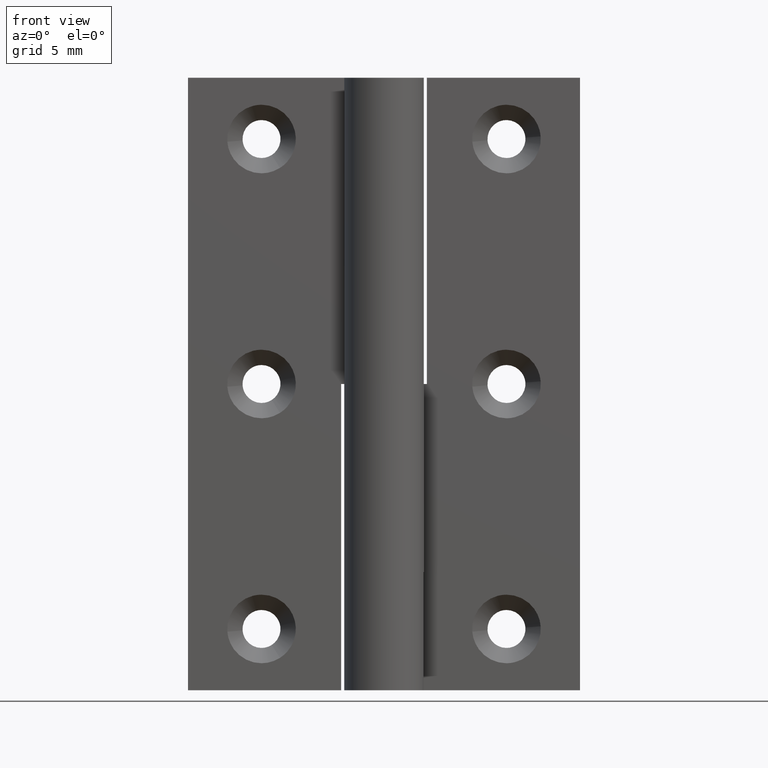
[diagram: clean part render]
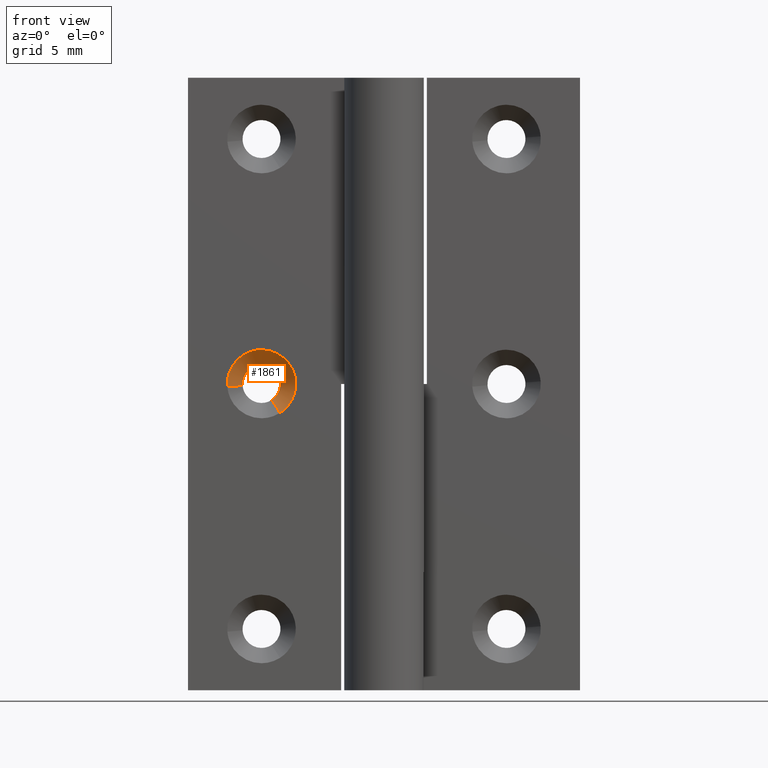
[diagram: same view with one face highlighted and labeled with its STEP entity id]
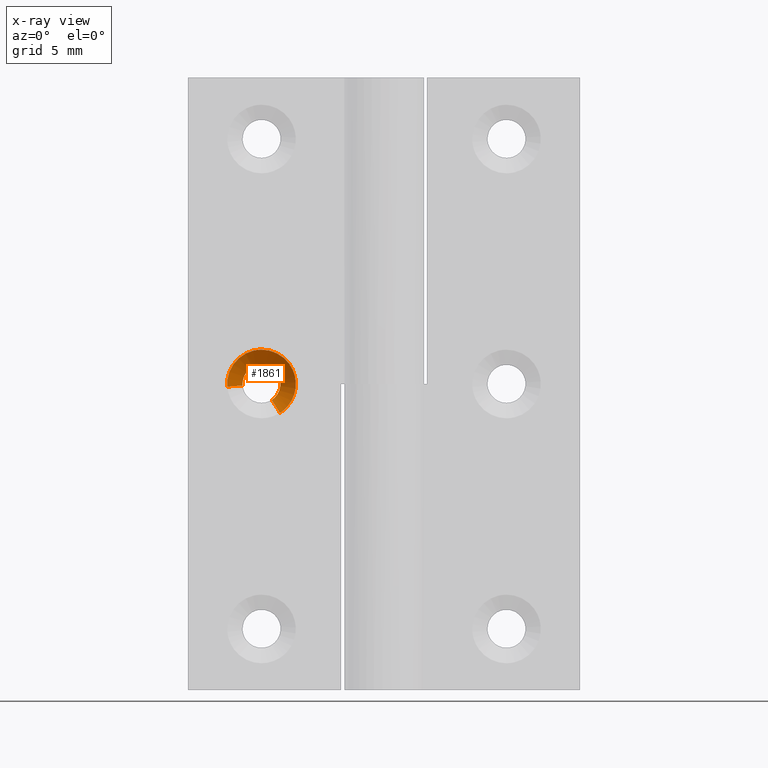
[diagram: x-ray of the same camera — body ghosted, the highlighted face saturated]
A machine part, front view. The second image highlights one B-rep face of the part: STEP entity #1861.
The next image is the same camera in x-ray: the body ghosted, the highlighted face saturated — about 0% of this face is hidden behind the body in this view.
In plain terms, the highlighted face is a freeform B-spline surface patch.
Its self-contained STEP definition (entity closure, byte-faithful):
#1725=CARTESIAN_POINT('',(-9.183139107453576,3.031250000000000,23.719632925787192));
#1726=CARTESIAN_POINT('',(-8.414386393113874,3.031250000000001,24.210089171523677));
#1727=CARTESIAN_POINT('',(-8.485931799392812,3.031250000000000,25.119159751636669));
#1728=CARTESIAN_POINT('',(-8.605091551029480,3.031250000000001,26.633227952243857));
#1729=CARTESIAN_POINT('',(-10.119159751636669,3.031250000000000,26.514068200607191));
#1730=CARTESIAN_POINT('',(-11.633227952243853,3.031250000000001,26.394908448970515));
#1731=CARTESIAN_POINT('',(-11.514068200607189,3.031250000000000,24.880840248363331));
#1732=CARTESIAN_POINT('',(-8.476789745123053,1.717968750000000,22.612484236614488));
#1733=CARTESIAN_POINT('',(-7.043287384278698,1.717968750000000,23.527043851220846));
#1734=CARTESIAN_POINT('',(-7.176698957201103,1.717968750000000,25.222198610947999));
#1735=CARTESIAN_POINT('',(-7.398897568149104,1.717968750000001,28.045499653746891));
#1736=CARTESIAN_POINT('',(-10.222198610948000,1.717968750000000,27.823301042798899));
#1737=CARTESIAN_POINT('',(-13.045499653746896,1.717968750000001,27.601102431850897));
#1738=CARTESIAN_POINT('',(-12.823301042798899,1.717968750000000,24.777801389052001));
#1746=(BOUNDED_SURFACE()B_SPLINE_SURFACE(2,1,((#1725,#1732),(#1726,#1733),(#1727,#1734),(#1728,#1735),(#1729,#1736),(#1730,#1737),(#1731,#1738)),.UNSPECIFIED.,.F.,.F.,.U.)B_SPLINE_SURFACE_WITH_KNOTS((3,2,2,3),(2,2),(0.0,3.190738847655248,7.883001858912967,12.575264870170690),(0.0,1.0),.UNSPECIFIED.)GEOMETRIC_REPRESENTATION_ITEM()RATIONAL_B_SPLINE_SURFACE(((0.872532871172386,0.872532871172386),(0.800832611206852,0.800832611206852),(1.0,1.0),(0.707106781186548,0.707106781186548),(1.0,1.0),(0.707106781186548,0.707106781186548),(1.0,1.0)))REPRESENTATION_ITEM('')SURFACE());
#1747=CARTESIAN_POINT('',(-8.460835234154370,3.0,25.182953063869839));
#1748=VERTEX_POINT('',#1747);
#1749=CARTESIAN_POINT('',(-9.166331270153041,2.999999999999661,23.693287924263188));
#1750=VERTEX_POINT('',#1749);
#1751=CARTESIAN_POINT('',(-8.460835234154370,3.0,25.182953063869842));
#1752=CARTESIAN_POINT('',(-8.450000000000001,3.000000000000000,25.091797385613933));
#1753=CARTESIAN_POINT('',(-8.450000000000001,3.0,25.0));
#1754=CARTESIAN_POINT('',(-8.450000000000001,3.000000000000000,24.150299833185166));
#1755=CARTESIAN_POINT('',(-9.166331270153041,2.999999999999661,23.693287924263188));
#1763=(BOUNDED_CURVE()B_SPLINE_CURVE(2,(#1751,#1752,#1753,#1754,#1755),.UNSPECIFIED.,.F.,.U.)B_SPLINE_CURVE_WITH_KNOTS((3,2,3),(0.229562473482294,0.250000000000000,0.407950112626363),.UNSPECIFIED.)CURVE()GEOMETRIC_REPRESENTATION_ITEM()RATIONAL_B_SPLINE_CURVE((0.956026754122519,0.976055948294576,1.0,0.814949932403669,0.863729296954190))REPRESENTATION_ITEM(''));
#1764=EDGE_CURVE('',#1748,#1750,#1763,.T.);
#1765=ORIENTED_EDGE('',*,*,#1764,.T.);
#1766=CARTESIAN_POINT('',(-8.494017778289672,1.749999999996397,22.639487863214299));
#1767=VERTEX_POINT('',#1766);
#1768=CARTESIAN_POINT('',(-9.166331270153041,2.999999999999661,23.693287924263188));
#1769=CARTESIAN_POINT('',(-8.494017778289672,1.749999999996397,22.639487863214299));
#1770=QUASI_UNIFORM_CURVE('',1,(#1768,#1769),.UNSPECIFIED.,.F.,.U.);
#1771=EDGE_CURVE('',#1750,#1767,#1770,.T.);
#1772=ORIENTED_EDGE('',*,*,#1771,.T.);
#1773=CARTESIAN_POINT('',(-10.0,1.750000000000000,27.800000000000001));
#1774=VERTEX_POINT('',#1773);
#1775=CARTESIAN_POINT('',(-10.0,1.750000000000000,27.800000000000001));
#1776=CARTESIAN_POINT('',(-7.200000000000000,1.750000000000000,27.800000000000004));
#1777=CARTESIAN_POINT('',(-7.200000000000000,1.750000000000000,25.0));
#1778=CARTESIAN_POINT('',(-7.200000000000000,1.750000000000000,23.465057763249849));
#1779=CARTESIAN_POINT('',(-8.494017778289672,1.749999999996397,22.639487863214292));
#1787=(BOUNDED_CURVE()B_SPLINE_CURVE(2,(#1775,#1776,#1777,#1778,#1779),.UNSPECIFIED.,.F.,.U.)B_SPLINE_CURVE_WITH_KNOTS((3,2,3),(0.0,0.250000000000000,0.407950112619935),.UNSPECIFIED.)CURVE()GEOMETRIC_REPRESENTATION_ITEM()RATIONAL_B_SPLINE_CURVE((1.0,0.707106781186547,1.0,0.814949932411200,0.863729296950220))REPRESENTATION_ITEM(''));
#1788=EDGE_CURVE('',#1774,#1767,#1787,.T.);
#1789=ORIENTED_EDGE('',*,*,#1788,.F.);
#1790=CARTESIAN_POINT('',(-12.791368534462871,1.749999999974804,24.780314531769420));
#1791=VERTEX_POINT('',#1790);
#1792=CARTESIAN_POINT('',(-12.791368534462872,1.749999999974804,24.780314531769417));
#1793=CARTESIAN_POINT('',(-12.800000000000004,1.750000000000000,24.889987700187003));
#1794=CARTESIAN_POINT('',(-12.800000000000001,1.750000000000000,25.0));
#1795=CARTESIAN_POINT('',(-12.800000000000001,1.750000000000000,27.800000000000004));
#1796=CARTESIAN_POINT('',(-10.0,1.750000000000000,27.800000000000001));
#1804=(BOUNDED_CURVE()B_SPLINE_CURVE(2,(#1792,#1793,#1794,#1795,#1796),.UNSPECIFIED.,.F.,.U.)B_SPLINE_CURVE_WITH_KNOTS((3,2,3),(0.736331300609352,0.750000000000000,1.0),.UNSPECIFIED.)CURVE()GEOMETRIC_REPRESENTATION_ITEM()RATIONAL_B_SPLINE_CURVE((0.969723356122950,0.983986122553918,1.0,0.707106781186547,1.0))REPRESENTATION_ITEM(''));
#1805=EDGE_CURVE('',#1791,#1774,#1804,.T.);
#1806=ORIENTED_EDGE('',*,*,#1805,.F.);
#1807=CARTESIAN_POINT('',(-11.545221867302221,2.999999999960591,24.878388401321178));
#1808=VERTEX_POINT('',#1807);
#1809=CARTESIAN_POINT('',(-11.545221867302221,2.999999999960591,24.878388401321178));
#1810=CARTESIAN_POINT('',(-12.791368534462871,1.749999999974804,24.780314531769420));
#1811=QUASI_UNIFORM_CURVE('',1,(#1809,#1810),.UNSPECIFIED.,.F.,.U.);
#1812=EDGE_CURVE('',#1808,#1791,#1811,.T.);
#1813=ORIENTED_EDGE('',*,*,#1812,.F.);
#1814=CARTESIAN_POINT('',(-11.547108937546771,3.0,24.905374763604481));
#1815=VERTEX_POINT('',#1814);
#1816=CARTESIAN_POINT('',(-11.545221867302217,2.999999999960591,24.878388401321185));
#1817=CARTESIAN_POINT('',(-11.546283155599831,2.999999999999999,24.891873348150725));
#1818=CARTESIAN_POINT('',(-11.547108937546765,3.0,24.905374763604478));
#1826=(BOUNDED_CURVE()B_SPLINE_CURVE(2,(#1816,#1817,#1818),.UNSPECIFIED.,.F.,.U.)B_SPLINE_CURVE_WITH_KNOTS((3,3),(0.736331300566744,0.739332962215982),.UNSPECIFIED.)CURVE()GEOMETRIC_REPRESENTATION_ITEM()RATIONAL_B_SPLINE_CURVE((0.969723356034031,0.972855475467485,0.976072041617508))REPRESENTATION_ITEM(''));
#1827=EDGE_CURVE('',#1808,#1815,#1826,.T.);
#1828=ORIENTED_EDGE('',*,*,#1827,.T.);
#1829=CARTESIAN_POINT('',(-10.0,3.0,26.550000000000001));
#1830=VERTEX_POINT('',#1829);
#1831=CARTESIAN_POINT('',(-11.547108937546774,3.000000000000000,24.905374763604478));
#1832=CARTESIAN_POINT('',(-11.550000000000004,2.999999999999999,24.952643216770358));
#1833=CARTESIAN_POINT('',(-11.550000000000001,3.0,25.0));
#1834=CARTESIAN_POINT('',(-11.549999999999999,3.000000000000000,26.550000000000008));
#1835=CARTESIAN_POINT('',(-10.0,3.0,26.550000000000001));
#1843=(BOUNDED_CURVE()B_SPLINE_CURVE(2,(#1831,#1832,#1833,#1834,#1835),.UNSPECIFIED.,.F.,.U.)B_SPLINE_CURVE_WITH_KNOTS((3,2,3),(0.739332962215983,0.750000000000000,1.0),.UNSPECIFIED.)CURVE()GEOMETRIC_REPRESENTATION_ITEM()RATIONAL_B_SPLINE_CURVE((0.976072041617510,0.987502787872938,1.0,0.707106781186547,1.0))REPRESENTATION_ITEM(''));
#1844=EDGE_CURVE('',#1815,#1830,#1843,.T.);
#1845=ORIENTED_EDGE('',*,*,#1844,.T.);
#1846=CARTESIAN_POINT('',(-10.0,3.0,26.550000000000001));
#1847=CARTESIAN_POINT('',(-8.623329485048956,3.000000000000000,26.549999999999994));
#1848=CARTESIAN_POINT('',(-8.460835234154370,3.000000000000000,25.182953063869835));
#1856=(BOUNDED_CURVE()B_SPLINE_CURVE(2,(#1846,#1847,#1848),.UNSPECIFIED.,.F.,.U.)B_SPLINE_CURVE_WITH_KNOTS((3,3),(0.0,0.229562473482294),.UNSPECIFIED.)CURVE()GEOMETRIC_REPRESENTATION_ITEM()RATIONAL_B_SPLINE_CURVE((1.0,0.731050832891972,0.956026754122518))REPRESENTATION_ITEM(''));
#1857=EDGE_CURVE('',#1830,#1748,#1856,.T.);
#1858=ORIENTED_EDGE('',*,*,#1857,.T.);
#1859=EDGE_LOOP('',(#1765,#1772,#1789,#1806,#1813,#1828,#1845,#1858));
#1860=FACE_OUTER_BOUND('',#1859,.T.);
#1861=ADVANCED_FACE('',(#1860),#1746,.F.);